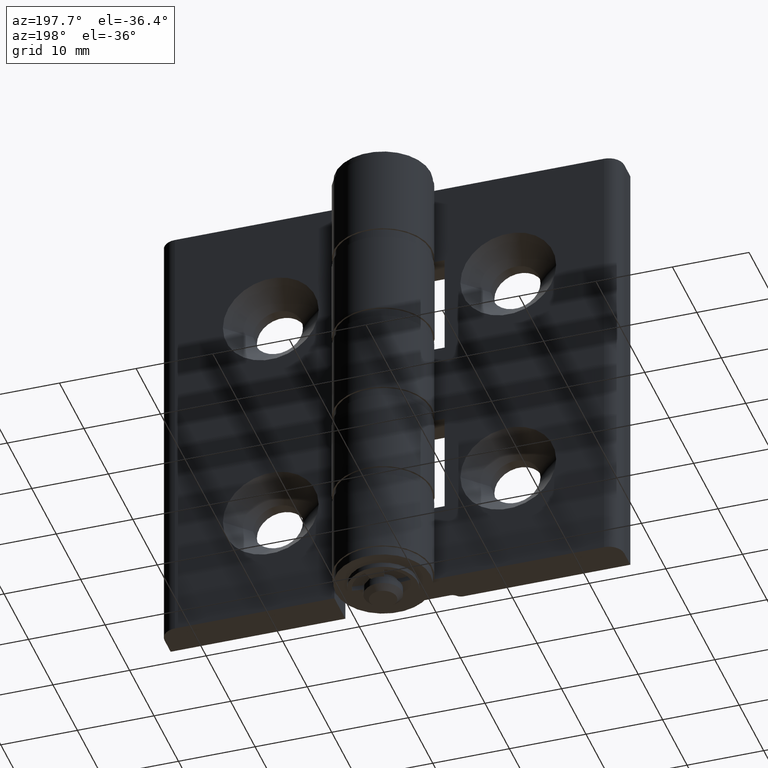
[diagram: clean part render]
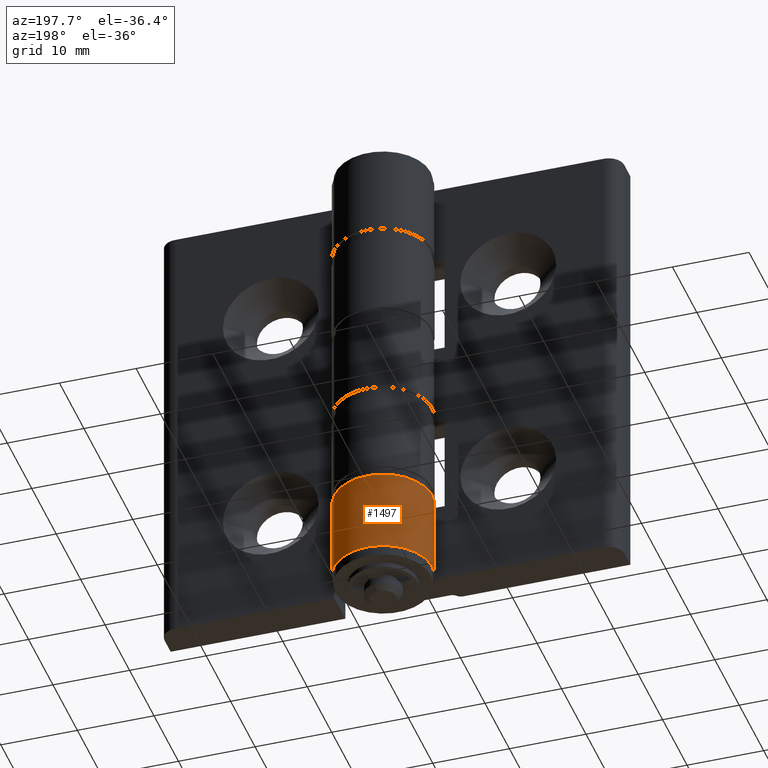
[diagram: same view with one face highlighted and labeled with its STEP entity id]
A machine part, auxiliary view. The second image highlights one B-rep face of the part: STEP entity #1497.
In plain terms, the highlighted cylindrical surface (partial cylindrical patch) has radius 6.4 mm, axis along (0, 0, -1).
Its self-contained STEP definition (entity closure, byte-faithful):
#202=FACE_OUTER_BOUND('',#306,.T.);
#306=EDGE_LOOP('',(#1152,#1153,#1154,#1155));
#454=LINE('',#2398,#557);
#458=LINE('',#2420,#561);
#557=VECTOR('',#1885,11.);
#561=VECTOR('',#1915,11.);
#648=CIRCLE('',#1612,6.4);
#654=CIRCLE('',#1622,6.4);
#753=VERTEX_POINT('',#2375);
#754=VERTEX_POINT('',#2377);
#762=VERTEX_POINT('',#2396);
#765=VERTEX_POINT('',#2410);
#903=EDGE_CURVE('',#753,#754,#648,.T.);
#914=EDGE_CURVE('',#753,#762,#454,.T.);
#922=EDGE_CURVE('',#762,#765,#654,.T.);
#926=EDGE_CURVE('',#765,#754,#458,.T.);
#1152=ORIENTED_EDGE('',*,*,#922,.T.);
#1153=ORIENTED_EDGE('',*,*,#926,.T.);
#1154=ORIENTED_EDGE('',*,*,#903,.F.);
#1155=ORIENTED_EDGE('',*,*,#914,.T.);
#1446=CYLINDRICAL_SURFACE('',#1627,6.4);
#1497=ADVANCED_FACE('',(#202),#1446,.T.);
#1612=AXIS2_PLACEMENT_3D('',#2378,#1870,#1871);
#1622=AXIS2_PLACEMENT_3D('',#2412,#1903,#1904);
#1627=AXIS2_PLACEMENT_3D('',#2419,#1913,#1914);
#1870=DIRECTION('center_axis',(0.,0.,-1.));
#1871=DIRECTION('ref_axis',(-1.,0.,0.));
#1885=DIRECTION('',(0.,0.,1.));
#1903=DIRECTION('center_axis',(0.,0.,-1.));
#1904=DIRECTION('ref_axis',(-1.,0.,0.));
#1913=DIRECTION('center_axis',(0.,0.,-1.));
#1914=DIRECTION('ref_axis',(-1.,0.,0.));
#1915=DIRECTION('',(0.,0.,-1.));
#2375=CARTESIAN_POINT('',(-5.84807660688538,4.5,-60.));
#2377=CARTESIAN_POINT('',(0.,0.699999999999998,-60.));
#2378=CARTESIAN_POINT('Origin',(2.18290024729954E-15,7.1,-60.));
#2396=CARTESIAN_POINT('',(-5.84807660688538,4.5,-49.));
#2398=CARTESIAN_POINT('',(-5.84807660688538,4.5,0.));
#2410=CARTESIAN_POINT('',(0.,0.699999999999998,-49.));
#2412=CARTESIAN_POINT('Origin',(2.18290024729954E-15,7.1,-49.));
#2419=CARTESIAN_POINT('Origin',(2.18290024729954E-15,7.1,0.));
#2420=CARTESIAN_POINT('',(0.,0.699999999999998,0.));